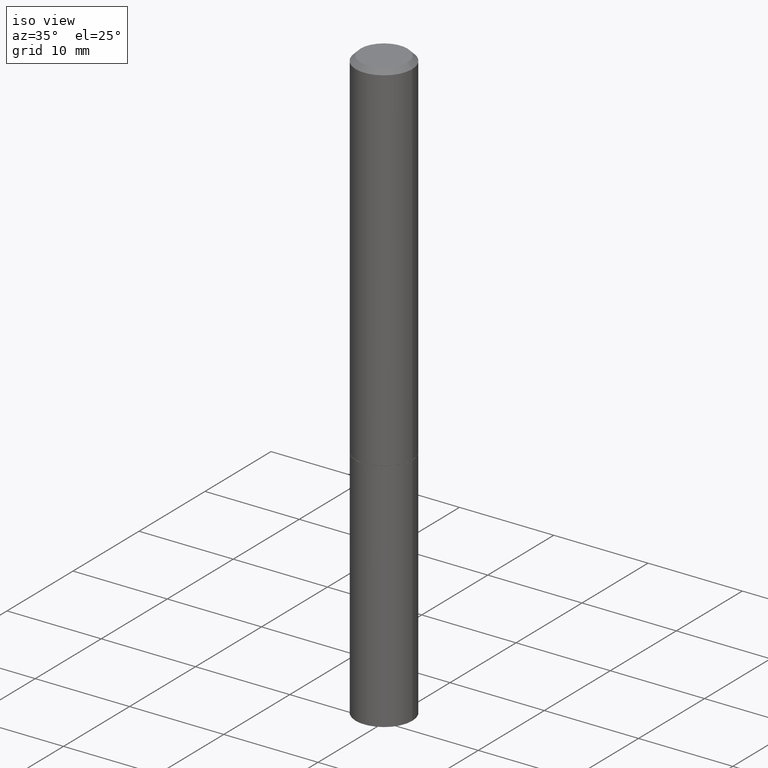
[diagram: clean part render]
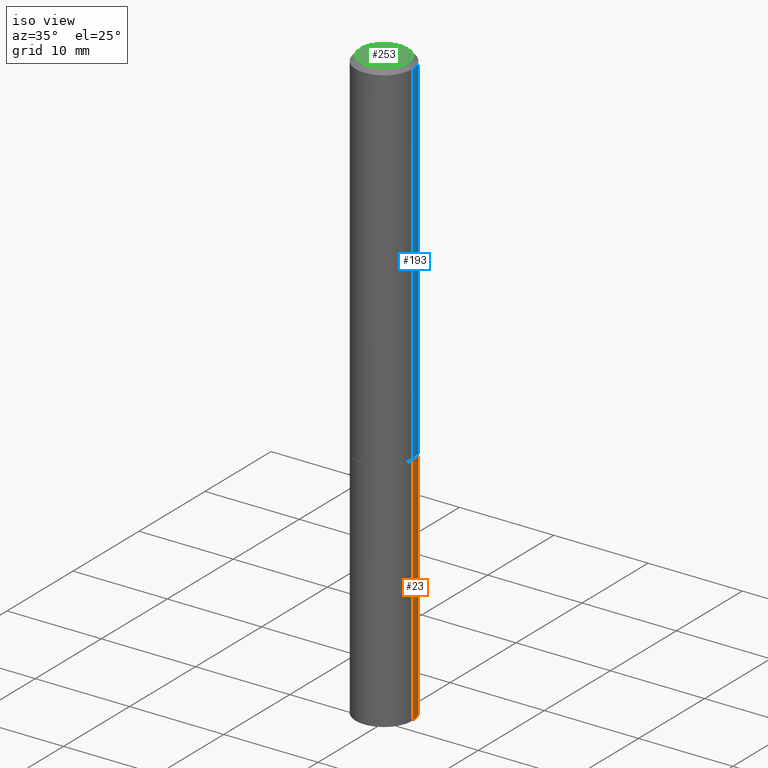
[diagram: same view with three faces highlighted in distinct colors, each labeled with its STEP entity id]
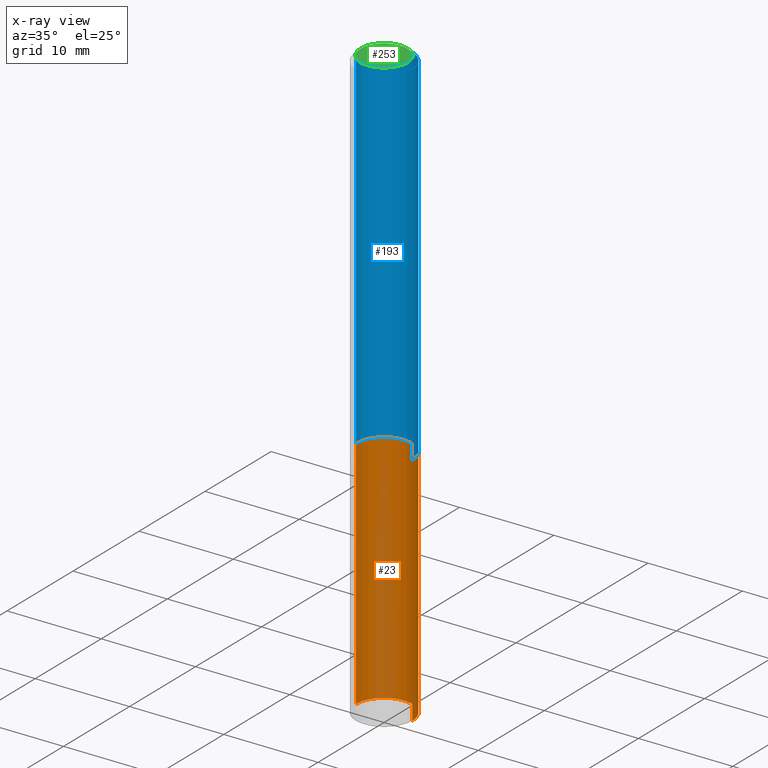
[diagram: x-ray of the same camera — body ghosted, the three highlighted faces saturated]
A machine part, iso view with three faces highlighted in distinct colors.
The next image is the same camera in x-ray (body ghosted, the three faces saturated) — at least one of them is partly hidden behind the body in this view.
Their STEP definitions:

[orange] entity #23 — the highlighted cylindrical surface (edge-blend (fillet) strip) has radius 2.9997 mm, axis along (-0, 0, 1).
#13 = FACE_OUTER_BOUND ( 'NONE', #58, .T. ) ;
#22 = CARTESIAN_POINT ( 'NONE',  ( -0.1180999999999999966, 8.391509709326782957E-16, -5.809262341591043784E-30 ) ) ;
#23 = ADVANCED_FACE ( 'NONE', ( #13 ), #354, .T. ) ;
#31 = ORIENTED_EDGE ( 'NONE', *, *, #120, .F. ) ;
#53 = VERTEX_POINT ( 'NONE', #93 ) ;
#54 = DIRECTION ( 'NONE',  ( -2.445468806185136877E-29, 3.491481338843145188E-15, 1.000000000000000000 ) ) ;
#58 = EDGE_LOOP ( 'NONE', ( #343, #155, #31, #349 ) ) ;
#59 = CARTESIAN_POINT ( 'NONE',  ( 6.065496279980994755E-29, -8.659921164732655335E-15, -2.480300000000000171 ) ) ;
#67 = AXIS2_PLACEMENT_3D ( 'NONE', #335, #72, #189 ) ;
#72 = DIRECTION ( 'NONE',  ( -2.445468806185136597E-29, 3.491481338843145583E-15, 1.000000000000000000 ) ) ;
#86 = DIRECTION ( 'NONE',  ( -2.445468806185136877E-29, 3.491481338843145188E-15, 1.000000000000000000 ) ) ;
#93 = CARTESIAN_POINT ( 'NONE',  ( -0.1180999999999999966, -6.102437652888322939E-15, -2.480300000000000171 ) ) ;
#107 = VECTOR ( 'NONE', #54, 39.37007874015748143 ) ;
#120 = EDGE_CURVE ( 'NONE', #306, #323, #212, .T. ) ;
#153 = EDGE_CURVE ( 'NONE', #53, #323, #271, .T. ) ;
#155 = ORIENTED_EDGE ( 'NONE', *, *, #153, .T. ) ;
#159 = AXIS2_PLACEMENT_3D ( 'NONE', #59, #344, #229 ) ;
#161 = EDGE_CURVE ( 'NONE', #319, #53, #329, .T. ) ;
#189 = DIRECTION ( 'NONE',  ( 1.000000000000000000, -6.982962677686265133E-15, 0.000000000000000000 ) ) ;
#203 = CARTESIAN_POINT ( 'NONE',  ( 0.1180999999999999966, -6.047943975144094411E-15, -1.496000000000000441 ) ) ;
#204 = EDGE_CURVE ( 'NONE', #319, #306, #282, .T. ) ;
#212 = CIRCLE ( 'NONE', #67, 0.1180999999999999966 ) ;
#229 = DIRECTION ( 'NONE',  ( 1.000000000000000000, -6.982962677686273021E-15, 0.000000000000000000 ) ) ;
#234 = CARTESIAN_POINT ( 'NONE',  ( 0.000000000000000000, 0.000000000000000000, 0.000000000000000000 ) ) ;
#254 = CARTESIAN_POINT ( 'NONE',  ( 0.1180999999999999966, -8.246878922347480654E-16, 5.758764772215000440E-30 ) ) ;
#260 = DIRECTION ( 'NONE',  ( -2.445468806185136597E-29, 3.491481338843145583E-15, 1.000000000000000000 ) ) ;
#266 = VECTOR ( 'NONE', #86, 39.37007874015748143 ) ;
#267 = CARTESIAN_POINT ( 'NONE',  ( 0.1180999999999999966, -9.484609056967403598E-15, -2.480300000000000171 ) ) ;
#271 = LINE ( 'NONE', #22, #107 ) ;
#282 = LINE ( 'NONE', #254, #266 ) ;
#299 = AXIS2_PLACEMENT_3D ( 'NONE', #234, #260, #353 ) ;
#306 = VERTEX_POINT ( 'NONE', #203 ) ;
#319 = VERTEX_POINT ( 'NONE', #267 ) ;
#323 = VERTEX_POINT ( 'NONE', #355 ) ;
#329 = CIRCLE ( 'NONE', #159, 0.1180999999999999966 ) ;
#335 = CARTESIAN_POINT ( 'NONE',  ( 3.658421334052965286E-29, -5.223256082909346937E-15, -1.496000000000000441 ) ) ;
#343 = ORIENTED_EDGE ( 'NONE', *, *, #161, .T. ) ;
#344 = DIRECTION ( 'NONE',  ( -2.445468806185136597E-29, 3.491481338843145583E-15, 1.000000000000000000 ) ) ;
#349 = ORIENTED_EDGE ( 'NONE', *, *, #204, .F. ) ;
#353 = DIRECTION ( 'NONE',  ( 1.000000000000000000, -6.982962677686266711E-15, 4.876176775795936353E-29 ) ) ;
#354 = CYLINDRICAL_SURFACE ( 'NONE', #299, 0.1180999999999999966 ) ;
#355 = CARTESIAN_POINT ( 'NONE',  ( -0.1180999999999999966, -6.102437652888322939E-15, -1.496000000000000441 ) ) ;

[blue] entity #193 — the highlighted cylindrical surface (edge-blend (fillet) strip) has radius 2.9997 mm, axis along (-0, 0, 1).
#16 = CIRCLE ( 'NONE', #330, 0.1180999999999999966 ) ;
#48 = AXIS2_PLACEMENT_3D ( 'NONE', #308, #197, #179 ) ;
#51 = EDGE_CURVE ( 'NONE', #331, #142, #60, .T. ) ;
#60 = CIRCLE ( 'NONE', #358, 0.1180999999999998301 ) ;
#66 = DIRECTION ( 'NONE',  ( 1.000000000000000000, -6.982962677686266711E-15, 0.000000000000000000 ) ) ;
#78 = ORIENTED_EDGE ( 'NONE', *, *, #366, .F. ) ;
#82 = FACE_OUTER_BOUND ( 'NONE', #106, .T. ) ;
#88 = DIRECTION ( 'NONE',  ( 1.000000000000000000, -6.982962677686265133E-15, 0.000000000000000000 ) ) ;
#89 = VERTEX_POINT ( 'NONE', #217 ) ;
#97 = VECTOR ( 'NONE', #302, 39.37007874015748143 ) ;
#106 = EDGE_LOOP ( 'NONE', ( #122, #209, #199, #78 ) ) ;
#122 = ORIENTED_EDGE ( 'NONE', *, *, #263, .T. ) ;
#126 = DIRECTION ( 'NONE',  ( -2.445468806185136597E-29, 3.491481338843145583E-15, 1.000000000000000000 ) ) ;
#131 = CARTESIAN_POINT ( 'NONE',  ( -0.1180999999999999134, 8.391509709326777040E-16, -5.809262341591039580E-30 ) ) ;
#142 = VERTEX_POINT ( 'NONE', #362 ) ;
#151 = VERTEX_POINT ( 'NONE', #270 ) ;
#165 = LINE ( 'NONE', #131, #97 ) ;
#179 = DIRECTION ( 'NONE',  ( 1.000000000000000000, -6.982962677686266711E-15, 4.876176775795935793E-29 ) ) ;
#193 = ADVANCED_FACE ( 'NONE', ( #82 ), #315, .T. ) ;
#197 = DIRECTION ( 'NONE',  ( -2.445468806185136597E-29, 3.491481338843145583E-15, 1.000000000000000000 ) ) ;
#199 = ORIENTED_EDGE ( 'NONE', *, *, #51, .F. ) ;
#209 = ORIENTED_EDGE ( 'NONE', *, *, #360, .T. ) ;
#210 = CARTESIAN_POINT ( 'NONE',  ( 4.890937612370281041E-31, -6.982962677686302702E-17, -0.02000000000000003511 ) ) ;
#215 = DIRECTION ( 'NONE',  ( -2.445468806185136877E-29, 3.491481338843145188E-15, 1.000000000000000000 ) ) ;
#217 = CARTESIAN_POINT ( 'NONE',  ( 0.1180999999999999966, -6.044452493805252192E-15, -1.495000000000000329 ) ) ;
#263 = EDGE_CURVE ( 'NONE', #89, #151, #16, .T. ) ;
#264 = DIRECTION ( 'NONE',  ( -2.445468806185136597E-29, 3.491481338843145583E-15, 1.000000000000000000 ) ) ;
#270 = CARTESIAN_POINT ( 'NONE',  ( -0.1180999999999999966, -1.805646143241003445E-15, -1.495000000000000329 ) ) ;
#297 = CARTESIAN_POINT ( 'NONE',  ( 0.1180999999999999134, -8.246878922347474737E-16, 5.758764772214996237E-30 ) ) ;
#302 = DIRECTION ( 'NONE',  ( -2.445468806185136877E-29, 3.491481338843145188E-15, 1.000000000000000000 ) ) ;
#308 = CARTESIAN_POINT ( 'NONE',  ( 0.000000000000000000, 0.000000000000000000, 0.000000000000000000 ) ) ;
#315 = CYLINDRICAL_SURFACE ( 'NONE', #48, 0.1180999999999999134 ) ;
#321 = VECTOR ( 'NONE', #215, 39.37007874015748143 ) ;
#330 = AXIS2_PLACEMENT_3D ( 'NONE', #352, #126, #88 ) ;
#331 = VERTEX_POINT ( 'NONE', #336 ) ;
#334 = LINE ( 'NONE', #297, #321 ) ;
#336 = CARTESIAN_POINT ( 'NONE',  ( 0.1180999999999998301, -8.800544403136797528E-16, -0.02000000000000003511 ) ) ;
#352 = CARTESIAN_POINT ( 'NONE',  ( 3.655975865246779683E-29, -5.219764601570503930E-15, -1.495000000000000329 ) ) ;
#358 = AXIS2_PLACEMENT_3D ( 'NONE', #210, #264, #66 ) ;
#360 = EDGE_CURVE ( 'NONE', #151, #142, #165, .T. ) ;
#362 = CARTESIAN_POINT ( 'NONE',  ( -0.1180999999999998301, 7.548582654578837811E-16, -0.02000000000000003511 ) ) ;
#366 = EDGE_CURVE ( 'NONE', #89, #331, #334, .T. ) ;

[green] entity #253 — the highlighted planar face has unit normal (0, -0, -1).
#37 = FACE_OUTER_BOUND ( 'NONE', #221, .T. ) ;
#42 = DIRECTION ( 'NONE',  ( -2.445468806185136597E-29, 3.491481338843145583E-15, 1.000000000000000000 ) ) ;
#61 = CARTESIAN_POINT ( 'NONE',  ( 0.000000000000000000, 0.000000000000000000, 0.000000000000000000 ) ) ;
#81 = EDGE_CURVE ( 'NONE', #205, #287, #239, .T. ) ;
#100 = DIRECTION ( 'NONE',  ( 1.000000000000000000, -6.982962677686266711E-15, 4.876176775795935793E-29 ) ) ;
#129 = CARTESIAN_POINT ( 'NONE',  ( -0.09809999999999984011, 7.199434520694527237E-16, -4.912674026790424285E-30 ) ) ;
#134 = CARTESIAN_POINT ( 'NONE',  ( 0.000000000000000000, 0.000000000000000000, 0.000000000000000000 ) ) ;
#149 = ORIENTED_EDGE ( 'NONE', *, *, #298, .T. ) ;
#152 = DIRECTION ( 'NONE',  ( -1.000000000000000000, 6.982962677686265922E-15, -4.876176775795935793E-29 ) ) ;
#158 = DIRECTION ( 'NONE',  ( 2.438088387897960049E-29, -3.491481338843145188E-15, -1.000000000000000000 ) ) ;
#181 = DIRECTION ( 'NONE',  ( -2.445468806185136597E-29, 3.491481338843145583E-15, 1.000000000000000000 ) ) ;
#205 = VERTEX_POINT ( 'NONE', #129 ) ;
#221 = EDGE_LOOP ( 'NONE', ( #351, #149 ) ) ;
#230 = DIRECTION ( 'NONE',  ( 1.000000000000000000, -6.982962677686266711E-15, 4.876176775795935793E-29 ) ) ;
#239 = CIRCLE ( 'NONE', #320, 0.09809999999999984011 ) ;
#253 = ADVANCED_FACE ( 'NONE', ( #37 ), #324, .F. ) ;
#259 = CARTESIAN_POINT ( 'NONE',  ( 0.09809999999999984011, -7.765346469475328709E-16, 5.110261127650076916E-30 ) ) ;
#279 = AXIS2_PLACEMENT_3D ( 'NONE', #291, #158, #152 ) ;
#287 = VERTEX_POINT ( 'NONE', #259 ) ;
#291 = CARTESIAN_POINT ( 'NONE',  ( 6.850286386810215676E-16, 0.09809999999999984011, -3.425143193405120164E-16 ) ) ;
#292 = CIRCLE ( 'NONE', #337, 0.09809999999999984011 ) ;
#298 = EDGE_CURVE ( 'NONE', #287, #205, #292, .T. ) ;
#320 = AXIS2_PLACEMENT_3D ( 'NONE', #134, #42, #100 ) ;
#324 = PLANE ( 'NONE',  #279 ) ;
#337 = AXIS2_PLACEMENT_3D ( 'NONE', #61, #181, #230 ) ;
#351 = ORIENTED_EDGE ( 'NONE', *, *, #81, .T. ) ;